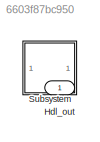
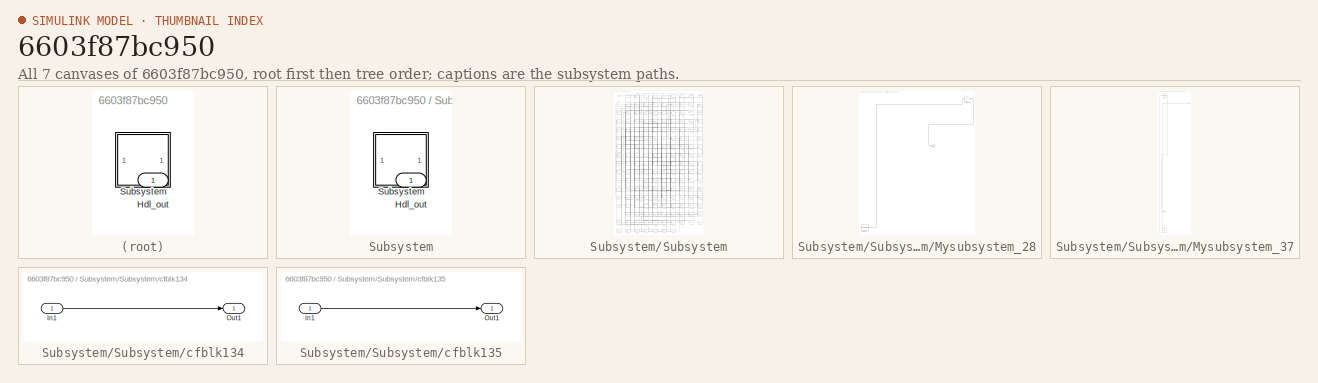
[diagram: thumbnail index - all 7 canvases of the model, root first then tree order]
MODEL slx_6603f87bc950
KIND model
CONFIG AbsTol = auto
CONFIG EnableMultiTasking = off
CONFIG FixedStep = auto
CONFIG MaxStep = auto
CONFIG MinStep = auto
CONFIG RelTol = 1e-3
CONFIG SampleTimeConstraint = Unconstrained
CONFIG SolverName = VariableStepAuto
CONFIG StartTime = 0.0
CONFIG StopTime = 10.0
BLOCK [Outport] Hdl_out
  OutDataTypeStr = uint8
BLOCK [SubSystem] Subsystem
BLOCK [Outport] Subsystem/Hdl_out
  OutDataTypeStr = uint8
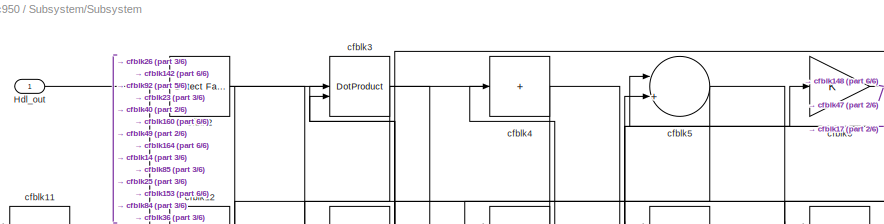
[diagram: Subsystem/Subsystem - part 1/6, top left region]
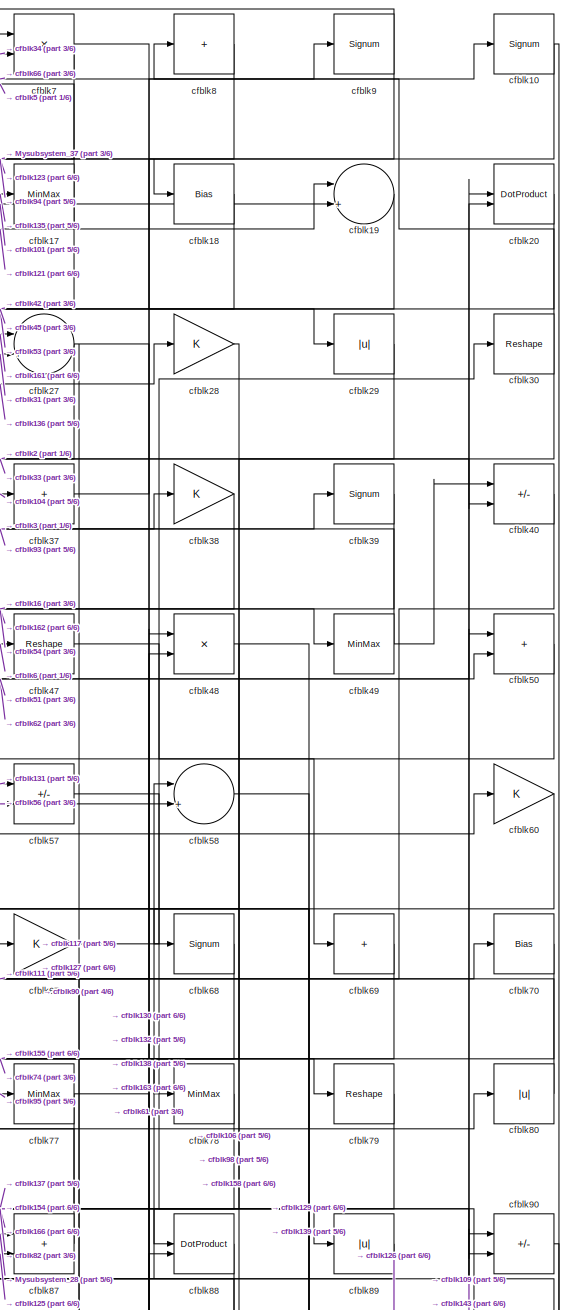
[diagram: Subsystem/Subsystem - part 2/6, top right region]
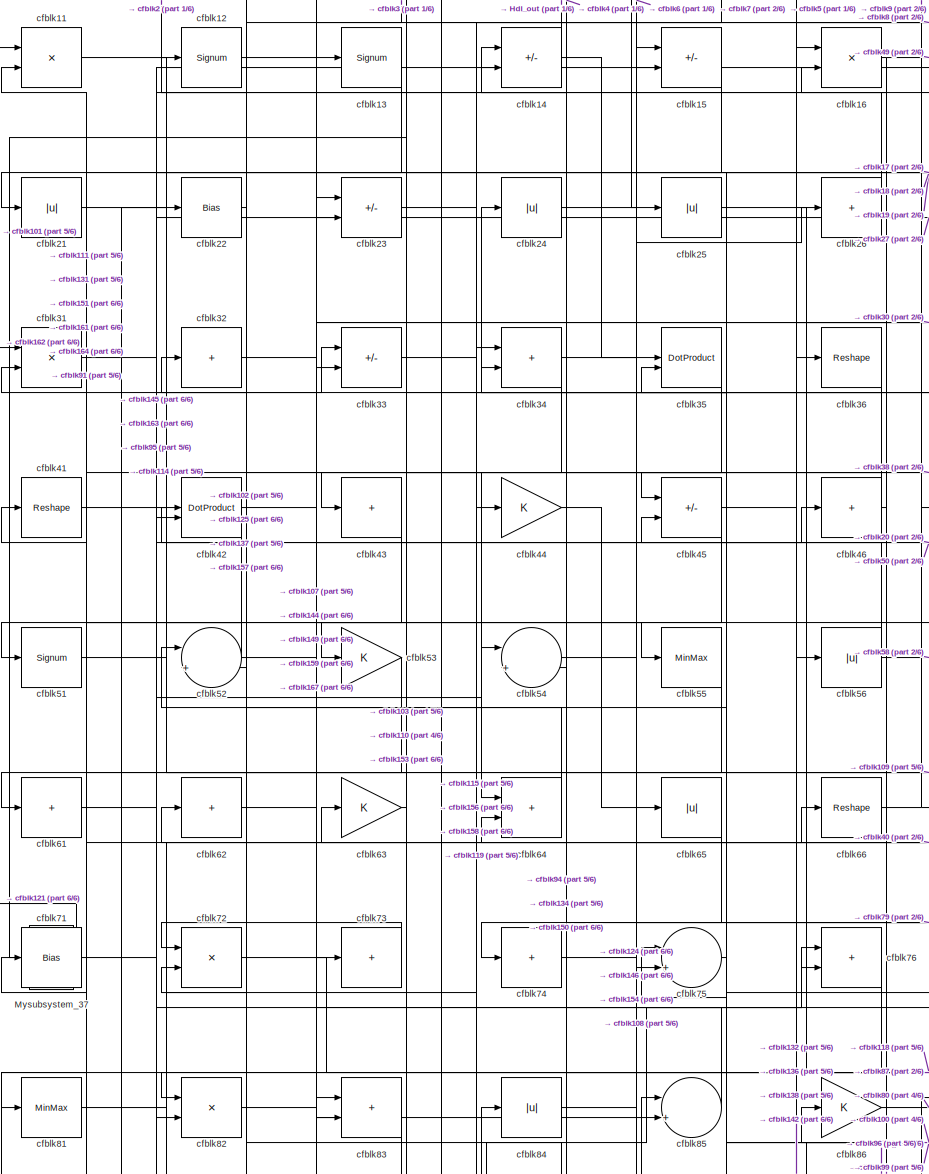
[diagram: Subsystem/Subsystem - part 3/6, top left region]
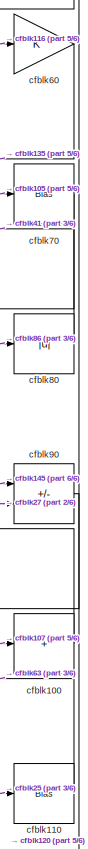
[diagram: Subsystem/Subsystem - part 4/6, middle right region]
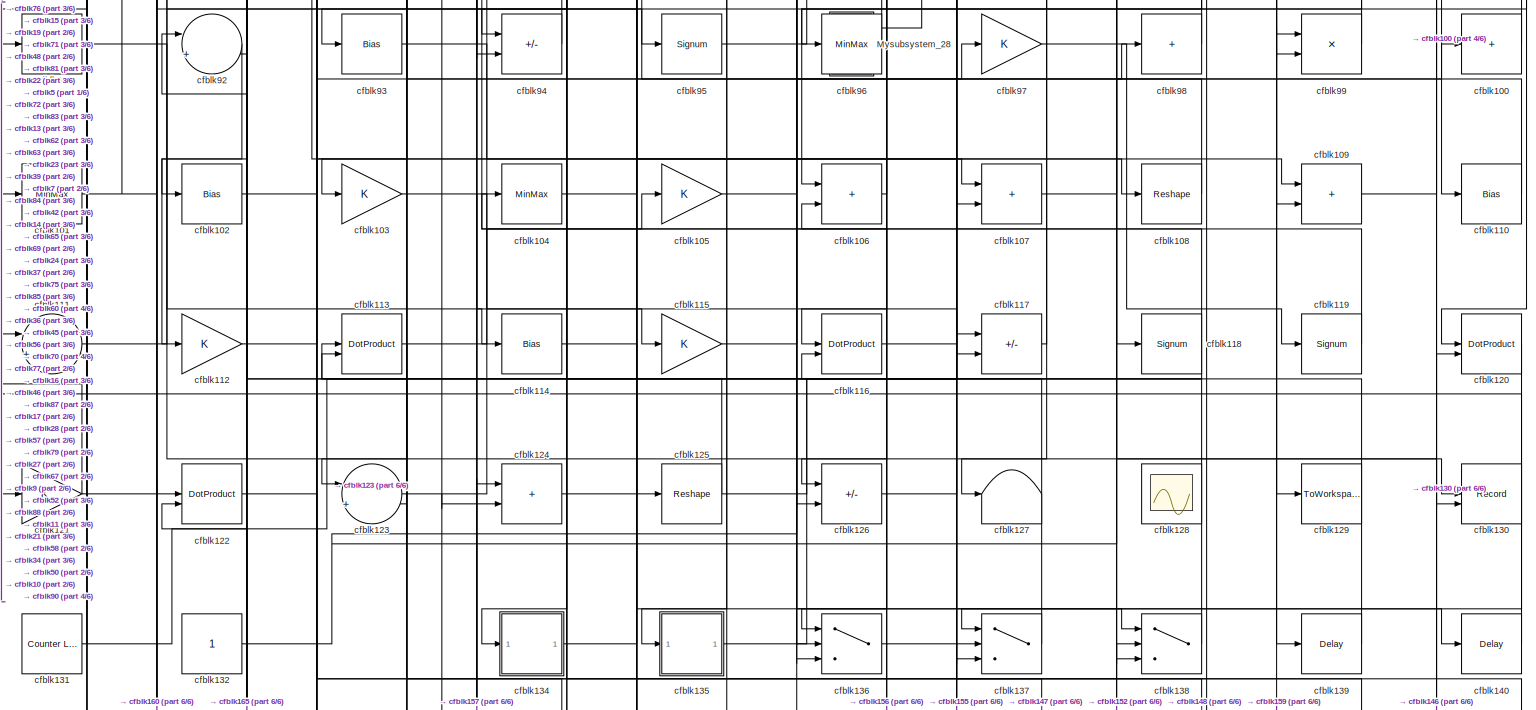
[diagram: Subsystem/Subsystem - part 5/6, full width, bottom band]
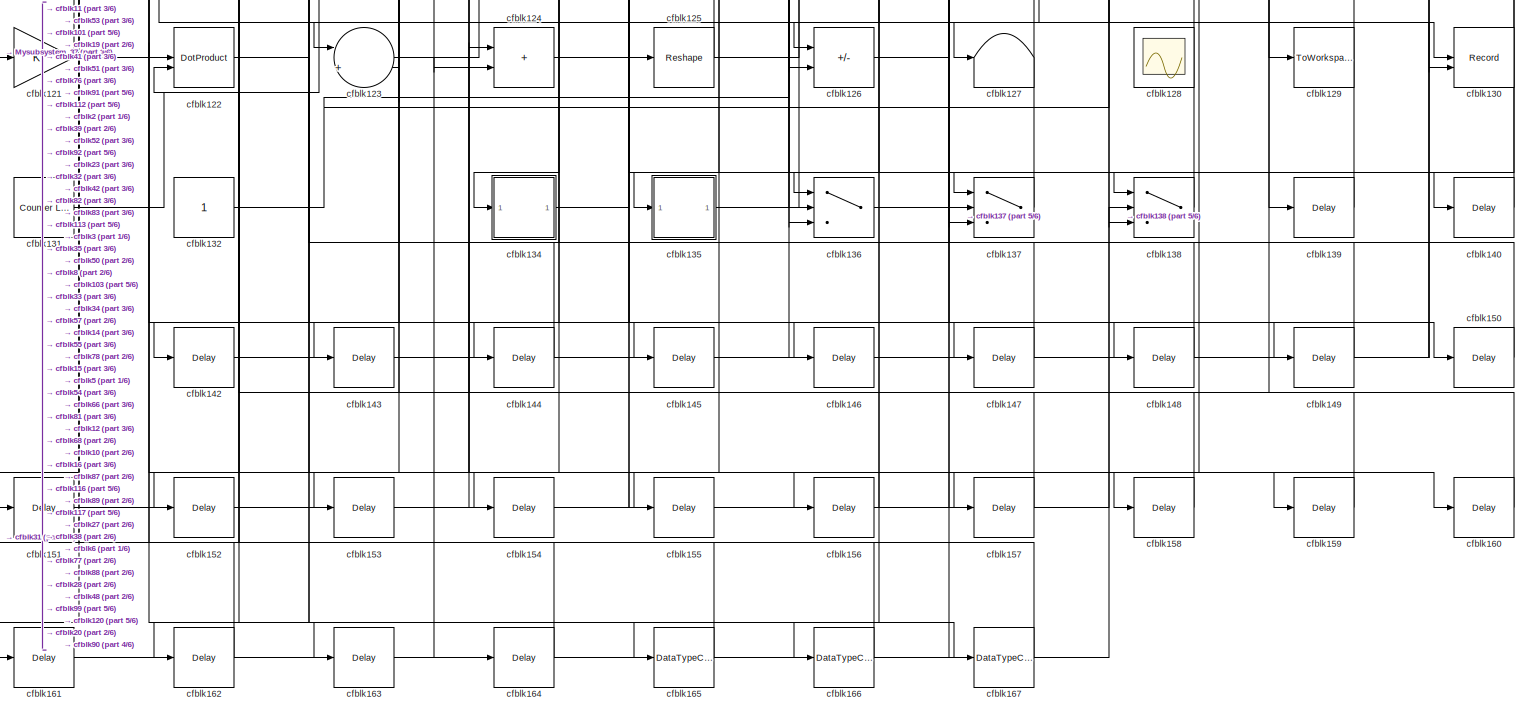
[diagram: Subsystem/Subsystem - part 6/6, full width, bottom band]
BLOCK [SubSystem] Subsystem/Subsystem
BLOCK [Outport] Subsystem/Subsystem/Hdl_out
  OutDataTypeStr = uint8
BLOCK [SubSystem] Subsystem/Subsystem/Mysubsystem_28
  RTWFcnName = Mysubsystem_28
  RTWFcnNameOpts = User specified
  RTWFileNameOpts = Use function name
  RTWSystemCode = Reusable function
  TreatAsAtomicUnit = on
BLOCK [Outport] Subsystem/Subsystem/Mysubsystem_28/Out1
BLOCK [Reference] Subsystem/Subsystem/Mysubsystem_28/cfblk133  REF=hdlsllib/Sources/Counter
Free-Running
  SourceBlock = hdlsllib/Sources/Counter\nFree-Running
  SourceType = Counter Free-Running
BLOCK [Gain] Subsystem/Subsystem/Mysubsystem_28/cfblk59
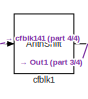
[diagram: Subsystem/Subsystem/Mysubsystem_37 - part 1/4, top left region]
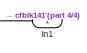
[diagram: Subsystem/Subsystem/Mysubsystem_37 - part 2/4, top right region]
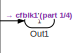
[diagram: Subsystem/Subsystem/Mysubsystem_37 - part 3/4, bottom left region]
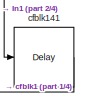
[diagram: Subsystem/Subsystem/Mysubsystem_37 - part 4/4, bottom left region]
BLOCK [SubSystem] Subsystem/Subsystem/Mysubsystem_37
  RTWFcnName = Mysubsystem_37
  RTWFcnNameOpts = User specified
  RTWFileNameOpts = Use function name
  RTWSystemCode = Reusable function
  TreatAsAtomicUnit = on
BLOCK [Inport] Subsystem/Subsystem/Mysubsystem_37/In1
BLOCK [Outport] Subsystem/Subsystem/Mysubsystem_37/Out1
BLOCK [ArithShift] Subsystem/Subsystem/Mysubsystem_37/cfblk1
  BitShiftNumber = 8
  InputPortMap = u0
BLOCK [Delay] Subsystem/Subsystem/Mysubsystem_37/cfblk141
  InputPortMap = u0
  SampleTime = 1
BLOCK [Signum] Subsystem/Subsystem/cfblk10
BLOCK [Sum] Subsystem/Subsystem/cfblk100
  IconShape = rectangular
  Inputs = +
  OutDataTypeStr = uint8
BLOCK [MinMax] Subsystem/Subsystem/cfblk101
  OutDataTypeStr = uint8
BLOCK [Bias] Subsystem/Subsystem/cfblk102
  Bias = 0.0
  SaturateOnIntegerOverflow = off
BLOCK [Gain] Subsystem/Subsystem/cfblk103
  OutDataTypeStr = uint8
BLOCK [MinMax] Subsystem/Subsystem/cfblk104
  OutDataTypeStr = uint8
BLOCK [Gain] Subsystem/Subsystem/cfblk105
  OutDataTypeStr = uint8
BLOCK [Sum] Subsystem/Subsystem/cfblk106
  IconShape = rectangular
  OutDataTypeStr = uint8
BLOCK [Sum] Subsystem/Subsystem/cfblk107
  IconShape = rectangular
  OutDataTypeStr = uint8
BLOCK [Reshape] Subsystem/Subsystem/cfblk108
BLOCK [Sum] Subsystem/Subsystem/cfblk109
  IconShape = rectangular
  OutDataTypeStr = uint8
BLOCK [Product] Subsystem/Subsystem/cfblk11
  Inputs = */
  OutDataTypeStr = uint8
  RndMeth = Zero
  SaturateOnIntegerOverflow = on
BLOCK [Bias] Subsystem/Subsystem/cfblk110
  Bias = 0.0
  SaturateOnIntegerOverflow = off
BLOCK [Sum] Subsystem/Subsystem/cfblk111
  Inputs = |++
  OutDataTypeStr = uint8
BLOCK [Gain] Subsystem/Subsystem/cfblk112
  OutDataTypeStr = uint8
BLOCK [DotProduct] Subsystem/Subsystem/cfblk113
  OutDataTypeStr = uint8
BLOCK [Bias] Subsystem/Subsystem/cfblk114
  Bias = 0.0
  SaturateOnIntegerOverflow = off
BLOCK [Gain] Subsystem/Subsystem/cfblk115
  OutDataTypeStr = uint8
BLOCK [DotProduct] Subsystem/Subsystem/cfblk116
  OutDataTypeStr = uint8
BLOCK [Sum] Subsystem/Subsystem/cfblk117
  IconShape = rectangular
  Inputs = +-
  OutDataTypeStr = uint8
BLOCK [Signum] Subsystem/Subsystem/cfblk118
BLOCK [Signum] Subsystem/Subsystem/cfblk119
BLOCK [Signum] Subsystem/Subsystem/cfblk12
BLOCK [DotProduct] Subsystem/Subsystem/cfblk120
  OutDataTypeStr = uint8
BLOCK [Gain] Subsystem/Subsystem/cfblk121
  OutDataTypeStr = uint8
BLOCK [DotProduct] Subsystem/Subsystem/cfblk122
  OutDataTypeStr = uint8
BLOCK [Sum] Subsystem/Subsystem/cfblk123
  Inputs = |++
  OutDataTypeStr = uint8
BLOCK [Sum] Subsystem/Subsystem/cfblk124
  IconShape = rectangular
  OutDataTypeStr = uint8
BLOCK [Reshape] Subsystem/Subsystem/cfblk125
BLOCK [Sum] Subsystem/Subsystem/cfblk126
  IconShape = rectangular
  Inputs = +-
  OutDataTypeStr = uint8
BLOCK [Terminator] Subsystem/Subsystem/cfblk127
BLOCK [Scope] Subsystem/Subsystem/cfblk128
  Floating = on
  NumInputPorts = 1
  ScopeSpecificationString = Simulink.scopes.TimeScopeBlockCfg('CurrentConfiguration', extmgr.ConfigurationSet(extmgr.Configuration('Core','General UI',true,'FigureColor',[0.156862745098039 0.156862745098039 0.156862745098039]),extmgr.Configuration('Core','Source UI',true),extmgr.Configuration('Sources','WiredSimulink',true,'DataLoggingSaveFormat','StructureWithTime','DataLoggingLimitDataPoints',true,'DataLoggingDecimation','...<+2674ch>
BLOCK [ToWorkspace] Subsystem/Subsystem/cfblk129
  MaxDataPoints = inf
  SampleTime = -1
  SaveFormat = Timeseries
  VariableName = simout
BLOCK [Signum] Subsystem/Subsystem/cfblk13
BLOCK [Record] Subsystem/Subsystem/cfblk130
  CompatibilityTag = XY
  FileSettingsInternal = {"entries":[{"content":{"excelSettings":{"content":{},"type":"Streamout.ExcelSettings"}},"type":"Streamout.FileSettingStorage","uuid":""}],"packageUris":["http:\/\/schema.mathworks.com\/mf0\/streamout_blocks\/R2020a"],"version":"1.0"}
  Layout = [1 1]
  SignalsInternal = {"entries":[{"content":{"signals":[{"content":{"blockPath":[],"dimensions":[1],"domain":"","lineColor":"#a2142f","plots":[1],"port":1,"signalID":55734,"signalName":"cfblk91"},"type":"RecordBlkView.Signal","uuid":""},{"content":{"blockPath":[],"dimensions":[1],"domain":"","lineColor":"#139fff","plots":[1],"port":2,"signalID":55737,"signalName":"cfblk77"},"type":"RecordBlkView.Signal","uuid":""}]},"...<+142ch>
  VisualizationBindings = {"xyplotplugin":{"info":[{"series":[{"bindingParametersList":[{"parameter":"X-Axis","signalID":55734,"signalName":"cfblk91"},{"parameter":"Y-Axis","signalID":55737,"signalName":"cfblk77"}],"seriesID":52220}],"subplotID":1}]}}
  st = -1
BLOCK [Reference] Subsystem/Subsystem/cfblk131  REF=hdlsllib/Sources/Counter
Limited
  SourceBlock = hdlsllib/Sources/Counter\nLimited
  SourceType = Counter Limited
BLOCK [Constant] Subsystem/Subsystem/cfblk132
  OutDataTypeStr = uint8
  SampleTime = -1
BLOCK [SubSystem] Subsystem/Subsystem/cfblk134
  LibrarySourceBlock = hdlsllib/Ports &\nSubsystems/Subsystem
BLOCK [Inport] Subsystem/Subsystem/cfblk134/In1
BLOCK [Outport] Subsystem/Subsystem/cfblk134/Out1
BLOCK [SubSystem] Subsystem/Subsystem/cfblk135
  LibrarySourceBlock = hdlsllib/Ports &\nSubsystems/Subsystem
BLOCK [Inport] Subsystem/Subsystem/cfblk135/In1
BLOCK [Outport] Subsystem/Subsystem/cfblk135/Out1
BLOCK [Switch] Subsystem/Subsystem/cfblk136
  InputSameDT = off
  OutDataTypeStr = uint8
  SaturateOnIntegerOverflow = off
BLOCK [Switch] Subsystem/Subsystem/cfblk137
  InputSameDT = off
  OutDataTypeStr = uint8
  SaturateOnIntegerOverflow = off
BLOCK [Switch] Subsystem/Subsystem/cfblk138
  InputSameDT = off
  OutDataTypeStr = uint8
  SaturateOnIntegerOverflow = off
BLOCK [Delay] Subsystem/Subsystem/cfblk139
  InputPortMap = u0
  SampleTime = 1
BLOCK [Sum] Subsystem/Subsystem/cfblk14
  IconShape = rectangular
  Inputs = +-
  OutDataTypeStr = uint8
BLOCK [Delay] Subsystem/Subsystem/cfblk140
  InputPortMap = u0
  SampleTime = 1
BLOCK [Delay] Subsystem/Subsystem/cfblk142
  InputPortMap = u0
  SampleTime = 1
BLOCK [Delay] Subsystem/Subsystem/cfblk143
  InputPortMap = u0
  SampleTime = 1
BLOCK [Delay] Subsystem/Subsystem/cfblk144
  InputPortMap = u0
  SampleTime = 1
BLOCK [Delay] Subsystem/Subsystem/cfblk145
  InputPortMap = u0
  SampleTime = 1
BLOCK [Delay] Subsystem/Subsystem/cfblk146
  InputPortMap = u0
  SampleTime = 1
BLOCK [Delay] Subsystem/Subsystem/cfblk147
  InputPortMap = u0
  SampleTime = 1
BLOCK [Delay] Subsystem/Subsystem/cfblk148
  InputPortMap = u0
  SampleTime = 1
BLOCK [Delay] Subsystem/Subsystem/cfblk149
  InputPortMap = u0
  SampleTime = 1
BLOCK [Sum] Subsystem/Subsystem/cfblk15
  IconShape = rectangular
  Inputs = +-
  OutDataTypeStr = uint8
BLOCK [Delay] Subsystem/Subsystem/cfblk150
  InputPortMap = u0
  SampleTime = 1
BLOCK [Delay] Subsystem/Subsystem/cfblk151
  InputPortMap = u0
  SampleTime = 1
BLOCK [Delay] Subsystem/Subsystem/cfblk152
  InputPortMap = u0
  SampleTime = 1
BLOCK [Delay] Subsystem/Subsystem/cfblk153
  InputPortMap = u0
  SampleTime = 1
BLOCK [Delay] Subsystem/Subsystem/cfblk154
  InputPortMap = u0
  SampleTime = 1
BLOCK [Delay] Subsystem/Subsystem/cfblk155
  InputPortMap = u0
  SampleTime = 1
BLOCK [Delay] Subsystem/Subsystem/cfblk156
  InputPortMap = u0
  SampleTime = 1
BLOCK [Delay] Subsystem/Subsystem/cfblk157
  InputPortMap = u0
  SampleTime = 1
BLOCK [Delay] Subsystem/Subsystem/cfblk158
  InputPortMap = u0
  SampleTime = 1
BLOCK [Delay] Subsystem/Subsystem/cfblk159
  InputPortMap = u0
  SampleTime = 1
BLOCK [Product] Subsystem/Subsystem/cfblk16
  Inputs = */
  OutDataTypeStr = uint8
  RndMeth = Zero
  SaturateOnIntegerOverflow = on
BLOCK [Delay] Subsystem/Subsystem/cfblk160
  InputPortMap = u0
  SampleTime = 1
BLOCK [Delay] Subsystem/Subsystem/cfblk161
  InputPortMap = u0
  SampleTime = 1
BLOCK [Delay] Subsystem/Subsystem/cfblk162
  InputPortMap = u0
  SampleTime = 1
BLOCK [Delay] Subsystem/Subsystem/cfblk163
  InputPortMap = u0
  SampleTime = 1
BLOCK [Delay] Subsystem/Subsystem/cfblk164
  InputPortMap = u0
  SampleTime = 1
BLOCK [DataTypeConversion] Subsystem/Subsystem/cfblk165
  OutDataTypeStr = uint8
  RndMeth = Floor
  SaturateOnIntegerOverflow = off
BLOCK [DataTypeConversion] Subsystem/Subsystem/cfblk166
  OutDataTypeStr = uint8
  RndMeth = Floor
  SaturateOnIntegerOverflow = off
BLOCK [DataTypeConversion] Subsystem/Subsystem/cfblk167
  OutDataTypeStr = uint8
  RndMeth = Floor
  SaturateOnIntegerOverflow = off
BLOCK [MinMax] Subsystem/Subsystem/cfblk17
  OutDataTypeStr = uint8
BLOCK [Bias] Subsystem/Subsystem/cfblk18
  Bias = 0.0
  SaturateOnIntegerOverflow = off
BLOCK [Sum] Subsystem/Subsystem/cfblk19
  Inputs = |++
  OutDataTypeStr = uint8
BLOCK [Reference] Subsystem/Subsystem/cfblk2  REF=hdlsllib/Logic and Bit
Operations/Detect Fall
Negative
  SourceBlock = hdlsllib/Logic and Bit\nOperations/Detect Fall\nNegative
  SourceType = Detect Fall Negative
BLOCK [DotProduct] Subsystem/Subsystem/cfblk20
  OutDataTypeStr = uint8
BLOCK [Abs] Subsystem/Subsystem/cfblk21
  OutDataTypeStr = uint8
  SaturateOnIntegerOverflow = off
BLOCK [Bias] Subsystem/Subsystem/cfblk22
  Bias = 0.0
  SaturateOnIntegerOverflow = off
BLOCK [Sum] Subsystem/Subsystem/cfblk23
  IconShape = rectangular
  Inputs = +-
  OutDataTypeStr = uint8
BLOCK [Abs] Subsystem/Subsystem/cfblk24
  OutDataTypeStr = uint8
  SaturateOnIntegerOverflow = off
BLOCK [Abs] Subsystem/Subsystem/cfblk25
  OutDataTypeStr = uint8
  SaturateOnIntegerOverflow = off
BLOCK [Sum] Subsystem/Subsystem/cfblk26
  IconShape = rectangular
  Inputs = +
  OutDataTypeStr = uint8
BLOCK [Sum] Subsystem/Subsystem/cfblk27
  Inputs = |++
  OutDataTypeStr = uint8
BLOCK [Gain] Subsystem/Subsystem/cfblk28
  OutDataTypeStr = uint8
BLOCK [Abs] Subsystem/Subsystem/cfblk29
  OutDataTypeStr = uint8
  SaturateOnIntegerOverflow = off
BLOCK [DotProduct] Subsystem/Subsystem/cfblk3
  OutDataTypeStr = uint8
BLOCK [Reshape] Subsystem/Subsystem/cfblk30
BLOCK [Product] Subsystem/Subsystem/cfblk31
  Inputs = */
  OutDataTypeStr = uint8
  RndMeth = Zero
  SaturateOnIntegerOverflow = on
BLOCK [Sum] Subsystem/Subsystem/cfblk32
  IconShape = rectangular
  Inputs = +
  OutDataTypeStr = uint8
BLOCK [Sum] Subsystem/Subsystem/cfblk33
  IconShape = rectangular
  Inputs = +-
  OutDataTypeStr = uint8
BLOCK [Sum] Subsystem/Subsystem/cfblk34
  IconShape = rectangular
  OutDataTypeStr = uint8
BLOCK [DotProduct] Subsystem/Subsystem/cfblk35
  OutDataTypeStr = uint8
BLOCK [Reshape] Subsystem/Subsystem/cfblk36
BLOCK [Sum] Subsystem/Subsystem/cfblk37
  IconShape = rectangular
  Inputs = +
  OutDataTypeStr = uint8
BLOCK [Gain] Subsystem/Subsystem/cfblk38
  OutDataTypeStr = uint8
BLOCK [Signum] Subsystem/Subsystem/cfblk39
BLOCK [Sum] Subsystem/Subsystem/cfblk4
  IconShape = rectangular
  Inputs = +
  OutDataTypeStr = uint8
BLOCK [Sum] Subsystem/Subsystem/cfblk40
  IconShape = rectangular
  Inputs = +-
  OutDataTypeStr = uint8
BLOCK [Reshape] Subsystem/Subsystem/cfblk41
BLOCK [DotProduct] Subsystem/Subsystem/cfblk42
  OutDataTypeStr = uint8
BLOCK [Sum] Subsystem/Subsystem/cfblk43
  IconShape = rectangular
  Inputs = +
  OutDataTypeStr = uint8
BLOCK [Gain] Subsystem/Subsystem/cfblk44
  OutDataTypeStr = uint8
BLOCK [Sum] Subsystem/Subsystem/cfblk45
  IconShape = rectangular
  Inputs = +-
  OutDataTypeStr = uint8
BLOCK [Sum] Subsystem/Subsystem/cfblk46
  IconShape = rectangular
  Inputs = +
  OutDataTypeStr = uint8
BLOCK [Reshape] Subsystem/Subsystem/cfblk47
BLOCK [Product] Subsystem/Subsystem/cfblk48
  Inputs = */
  OutDataTypeStr = uint8
  RndMeth = Zero
  SaturateOnIntegerOverflow = on
BLOCK [MinMax] Subsystem/Subsystem/cfblk49
  OutDataTypeStr = uint8
BLOCK [Sum] Subsystem/Subsystem/cfblk5
  Inputs = |++
  OutDataTypeStr = uint8
BLOCK [Sum] Subsystem/Subsystem/cfblk50
  IconShape = rectangular
  OutDataTypeStr = uint8
BLOCK [Signum] Subsystem/Subsystem/cfblk51
BLOCK [Sum] Subsystem/Subsystem/cfblk52
  Inputs = |++
  OutDataTypeStr = uint8
BLOCK [Gain] Subsystem/Subsystem/cfblk53
  OutDataTypeStr = uint8
BLOCK [Sum] Subsystem/Subsystem/cfblk54
  Inputs = |++
  OutDataTypeStr = uint8
BLOCK [MinMax] Subsystem/Subsystem/cfblk55
  OutDataTypeStr = uint8
BLOCK [Abs] Subsystem/Subsystem/cfblk56
  OutDataTypeStr = uint8
  SaturateOnIntegerOverflow = off
BLOCK [Sum] Subsystem/Subsystem/cfblk57
  IconShape = rectangular
  Inputs = +-
  OutDataTypeStr = uint8
BLOCK [Sum] Subsystem/Subsystem/cfblk58
  Inputs = |++
  OutDataTypeStr = uint8
BLOCK [Gain] Subsystem/Subsystem/cfblk6
  OutDataTypeStr = uint8
BLOCK [Gain] Subsystem/Subsystem/cfblk60
  OutDataTypeStr = uint8
BLOCK [Sum] Subsystem/Subsystem/cfblk61
  IconShape = rectangular
  Inputs = +
  OutDataTypeStr = uint8
BLOCK [Sum] Subsystem/Subsystem/cfblk62
  IconShape = rectangular
  Inputs = +
  OutDataTypeStr = uint8
BLOCK [Gain] Subsystem/Subsystem/cfblk63
  OutDataTypeStr = uint8
BLOCK [Sum] Subsystem/Subsystem/cfblk64
  IconShape = rectangular
  OutDataTypeStr = uint8
BLOCK [Abs] Subsystem/Subsystem/cfblk65
  OutDataTypeStr = uint8
  SaturateOnIntegerOverflow = off
BLOCK [Reshape] Subsystem/Subsystem/cfblk66
BLOCK [Gain] Subsystem/Subsystem/cfblk67
  OutDataTypeStr = uint8
BLOCK [Signum] Subsystem/Subsystem/cfblk68
BLOCK [Sum] Subsystem/Subsystem/cfblk69
  IconShape = rectangular
  Inputs = +
  OutDataTypeStr = uint8
BLOCK [Product] Subsystem/Subsystem/cfblk7
  Inputs = */
  OutDataTypeStr = uint8
  RndMeth = Zero
  SaturateOnIntegerOverflow = on
BLOCK [Bias] Subsystem/Subsystem/cfblk70
  Bias = 0.0
  SaturateOnIntegerOverflow = off
BLOCK [Bias] Subsystem/Subsystem/cfblk71
  Bias = 0.0
  SaturateOnIntegerOverflow = off
BLOCK [Product] Subsystem/Subsystem/cfblk72
  Inputs = */
  OutDataTypeStr = uint8
  RndMeth = Zero
  SaturateOnIntegerOverflow = on
BLOCK [Sum] Subsystem/Subsystem/cfblk73
  IconShape = rectangular
  Inputs = +
  OutDataTypeStr = uint8
BLOCK [Sum] Subsystem/Subsystem/cfblk74
  IconShape = rectangular
  Inputs = +
  OutDataTypeStr = uint8
BLOCK [Sum] Subsystem/Subsystem/cfblk75
  Inputs = |++
  OutDataTypeStr = uint8
BLOCK [Sum] Subsystem/Subsystem/cfblk76
  IconShape = rectangular
  OutDataTypeStr = uint8
BLOCK [MinMax] Subsystem/Subsystem/cfblk77
  OutDataTypeStr = uint8
BLOCK [MinMax] Subsystem/Subsystem/cfblk78
  OutDataTypeStr = uint8
BLOCK [Reshape] Subsystem/Subsystem/cfblk79
BLOCK [Sum] Subsystem/Subsystem/cfblk8
  IconShape = rectangular
  Inputs = +
  OutDataTypeStr = uint8
BLOCK [Abs] Subsystem/Subsystem/cfblk80
  OutDataTypeStr = uint8
  SaturateOnIntegerOverflow = off
BLOCK [MinMax] Subsystem/Subsystem/cfblk81
  OutDataTypeStr = uint8
BLOCK [Product] Subsystem/Subsystem/cfblk82
  Inputs = */
  OutDataTypeStr = uint8
  RndMeth = Zero
  SaturateOnIntegerOverflow = on
BLOCK [Sum] Subsystem/Subsystem/cfblk83
  IconShape = rectangular
  OutDataTypeStr = uint8
BLOCK [Abs] Subsystem/Subsystem/cfblk84
  OutDataTypeStr = uint8
  SaturateOnIntegerOverflow = off
BLOCK [Sum] Subsystem/Subsystem/cfblk85
  Inputs = |++
  OutDataTypeStr = uint8
BLOCK [Gain] Subsystem/Subsystem/cfblk86
  OutDataTypeStr = uint8
BLOCK [Sum] Subsystem/Subsystem/cfblk87
  IconShape = rectangular
  OutDataTypeStr = uint8
BLOCK [DotProduct] Subsystem/Subsystem/cfblk88
  OutDataTypeStr = uint8
BLOCK [Abs] Subsystem/Subsystem/cfblk89
  OutDataTypeStr = uint8
  SaturateOnIntegerOverflow = off
BLOCK [Signum] Subsystem/Subsystem/cfblk9
BLOCK [Sum] Subsystem/Subsystem/cfblk90
  IconShape = rectangular
  Inputs = +-
  OutDataTypeStr = uint8
BLOCK [Sum] Subsystem/Subsystem/cfblk91
  IconShape = rectangular
  Inputs = +
  OutDataTypeStr = uint8
BLOCK [Sum] Subsystem/Subsystem/cfblk92
  Inputs = |++
  OutDataTypeStr = uint8
BLOCK [Bias] Subsystem/Subsystem/cfblk93
  Bias = 0.0
  SaturateOnIntegerOverflow = off
BLOCK [Sum] Subsystem/Subsystem/cfblk94
  IconShape = rectangular
  Inputs = +-
  OutDataTypeStr = uint8
BLOCK [Signum] Subsystem/Subsystem/cfblk95
BLOCK [MinMax] Subsystem/Subsystem/cfblk96
  OutDataTypeStr = uint8
BLOCK [Gain] Subsystem/Subsystem/cfblk97
  OutDataTypeStr = uint8
BLOCK [Sum] Subsystem/Subsystem/cfblk98
  IconShape = rectangular
  Inputs = +
  OutDataTypeStr = uint8
BLOCK [Product] Subsystem/Subsystem/cfblk99
  Inputs = */
  OutDataTypeStr = uint8
  RndMeth = Zero
  SaturateOnIntegerOverflow = on
LINE Subsystem/Subsystem/Mysubsystem_28/cfblk133:1 -> Subsystem/Subsystem/Mysubsystem_28/cfblk59:1
LINE Subsystem/Subsystem/Mysubsystem_28/cfblk59:1 -> Subsystem/Subsystem/Mysubsystem_28/Out1:1
LINE Subsystem/Subsystem/Mysubsystem_28:1 -> Subsystem/Subsystem/cfblk87:1
LINE Subsystem/Subsystem/Mysubsystem_37/In1:1 -> Subsystem/Subsystem/Mysubsystem_37/cfblk141:1
LINE Subsystem/Subsystem/Mysubsystem_37/cfblk141:1 -> Subsystem/Subsystem/Mysubsystem_37/cfblk1:1
LINE Subsystem/Subsystem/Mysubsystem_37/cfblk1:1 -> Subsystem/Subsystem/Mysubsystem_37/Out1:1
LINE Subsystem/Subsystem/Mysubsystem_37:1 -> Subsystem/Subsystem/cfblk121:1
LINE Subsystem/Subsystem/cfblk100:1 -> Subsystem/Subsystem/cfblk86:1
NET Subsystem/Subsystem/cfblk101:1 -> Subsystem/Subsystem/cfblk160:1, Subsystem/Subsystem/cfblk19:2, Subsystem/Subsystem/cfblk22:1
LINE Subsystem/Subsystem/cfblk102:1 -> Subsystem/Subsystem/cfblk13:1
NET Subsystem/Subsystem/cfblk103:1 -> Subsystem/Subsystem/cfblk117:2, Subsystem/Subsystem/cfblk157:1
LINE Subsystem/Subsystem/cfblk104:1 -> Subsystem/Subsystem/cfblk37:1
LINE Subsystem/Subsystem/cfblk105:1 -> Subsystem/Subsystem/cfblk70:1
LINE Subsystem/Subsystem/cfblk106:1 -> Subsystem/Subsystem/cfblk16:2
LINE Subsystem/Subsystem/cfblk107:1 -> Subsystem/Subsystem/cfblk100:1
LINE Subsystem/Subsystem/cfblk108:1 -> Subsystem/Subsystem/cfblk85:1
LINE Subsystem/Subsystem/cfblk109:1 -> Subsystem/Subsystem/cfblk50:1
NET Subsystem/Subsystem/cfblk10:1 -> Subsystem/Subsystem/cfblk126:2, Subsystem/Subsystem/cfblk93:1
LINE Subsystem/Subsystem/cfblk110:1 -> Subsystem/Subsystem/cfblk63:1
LINE Subsystem/Subsystem/cfblk111:1 -> Subsystem/Subsystem/cfblk48:1
NET Subsystem/Subsystem/cfblk112:1 -> Subsystem/Subsystem/cfblk152:1, Subsystem/Subsystem/cfblk97:1
NET Subsystem/Subsystem/cfblk113:1 -> Subsystem/Subsystem/cfblk105:1, Subsystem/Subsystem/cfblk123:2
LINE Subsystem/Subsystem/cfblk114:1 -> Subsystem/Subsystem/cfblk140:1
LINE Subsystem/Subsystem/cfblk115:1 -> Subsystem/Subsystem/cfblk98:1
LINE Subsystem/Subsystem/cfblk116:1 -> Subsystem/Subsystem/cfblk60:1
LINE Subsystem/Subsystem/cfblk117:1 -> Subsystem/Subsystem/cfblk67:1
NET Subsystem/Subsystem/cfblk118:1 -> Subsystem/Subsystem/cfblk104:1, Subsystem/Subsystem/cfblk113:1
LINE Subsystem/Subsystem/cfblk119:1 -> Subsystem/Subsystem/cfblk84:1
LINE Subsystem/Subsystem/cfblk11:1 -> Subsystem/Subsystem/cfblk99:2
LINE Subsystem/Subsystem/cfblk120:1 -> Subsystem/Subsystem/cfblk137:1
NET Subsystem/Subsystem/cfblk121:1 -> Subsystem/Subsystem/cfblk11:1, Subsystem/Subsystem/cfblk19:1, Subsystem/Subsystem/cfblk76:2
LINE Subsystem/Subsystem/cfblk122:1 -> Subsystem/Subsystem/cfblk165:1
NET Subsystem/Subsystem/cfblk123:1 -> Subsystem/Subsystem/cfblk124:2, Subsystem/Subsystem/cfblk57:2
NET Subsystem/Subsystem/cfblk124:1 -> Subsystem/Subsystem/cfblk147:1, Subsystem/Subsystem/cfblk66:1
NET Subsystem/Subsystem/cfblk125:1 -> Subsystem/Subsystem/cfblk12:1, Subsystem/Subsystem/cfblk87:2
LINE Subsystem/Subsystem/cfblk126:1 -> Subsystem/Subsystem/cfblk38:1
LINE Subsystem/Subsystem/cfblk12:1 -> Subsystem/Subsystem/cfblk73:1
NET Subsystem/Subsystem/cfblk131:1 -> Subsystem/Subsystem/cfblk57:1, Subsystem/Subsystem/cfblk71:1
NET Subsystem/Subsystem/cfblk132:1 -> Subsystem/Subsystem/cfblk48:2, Subsystem/Subsystem/cfblk56:1
LINE Subsystem/Subsystem/cfblk134/In1:1 -> Subsystem/Subsystem/cfblk134/Out1:1
LINE Subsystem/Subsystem/cfblk134:1 -> Subsystem/Subsystem/cfblk75:2
LINE Subsystem/Subsystem/cfblk135/In1:1 -> Subsystem/Subsystem/cfblk135/Out1:1
LINE Subsystem/Subsystem/cfblk135:1 -> Subsystem/Subsystem/cfblk17:1
LINE Subsystem/Subsystem/cfblk136:1 -> Subsystem/Subsystem/cfblk28:1
LINE Subsystem/Subsystem/cfblk137:1 -> Subsystem/Subsystem/cfblk72:2
LINE Subsystem/Subsystem/cfblk138:1 -> Subsystem/Subsystem/cfblk14:1
LINE Subsystem/Subsystem/cfblk139:1 -> Subsystem/Subsystem/cfblk106:2
LINE Subsystem/Subsystem/cfblk13:1 -> Subsystem/Subsystem/cfblk21:1
LINE Subsystem/Subsystem/cfblk140:1 -> Subsystem/Subsystem/cfblk111:1
LINE Subsystem/Subsystem/cfblk142:1 -> Subsystem/Subsystem/cfblk16:1
LINE Subsystem/Subsystem/cfblk143:1 -> Subsystem/Subsystem/cfblk20:1
LINE Subsystem/Subsystem/cfblk144:1 -> Subsystem/Subsystem/cfblk83:1
LINE Subsystem/Subsystem/cfblk145:1 -> Subsystem/Subsystem/cfblk90:1
LINE Subsystem/Subsystem/cfblk146:1 -> Subsystem/Subsystem/cfblk120:2
LINE Subsystem/Subsystem/cfblk147:1 -> Subsystem/Subsystem/cfblk117:1
LINE Subsystem/Subsystem/cfblk148:1 -> Subsystem/Subsystem/cfblk113:2
LINE Subsystem/Subsystem/cfblk149:1 -> Subsystem/Subsystem/cfblk23:1
NET Subsystem/Subsystem/cfblk14:1 -> Subsystem/Subsystem/Hdl_out:1, Subsystem/Subsystem/cfblk35:1
LINE Subsystem/Subsystem/cfblk150:1 -> Subsystem/Subsystem/cfblk14:2
LINE Subsystem/Subsystem/cfblk151:1 -> Subsystem/Subsystem/cfblk124:1
LINE Subsystem/Subsystem/cfblk152:1 -> Subsystem/Subsystem/cfblk138:2
LINE Subsystem/Subsystem/cfblk153:1 -> Subsystem/Subsystem/cfblk5:2
LINE Subsystem/Subsystem/cfblk154:1 -> Subsystem/Subsystem/cfblk15:1
LINE Subsystem/Subsystem/cfblk155:1 -> Subsystem/Subsystem/cfblk137:2
LINE Subsystem/Subsystem/cfblk156:1 -> Subsystem/Subsystem/cfblk116:2
LINE Subsystem/Subsystem/cfblk157:1 -> Subsystem/Subsystem/cfblk52:2
LINE Subsystem/Subsystem/cfblk158:1 -> Subsystem/Subsystem/cfblk34:1
LINE Subsystem/Subsystem/cfblk159:1 -> Subsystem/Subsystem/cfblk99:1
LINE Subsystem/Subsystem/cfblk15:1 -> Subsystem/Subsystem/cfblk111:2
LINE Subsystem/Subsystem/cfblk160:1 -> Subsystem/Subsystem/cfblk3:2
LINE Subsystem/Subsystem/cfblk161:1 -> Subsystem/Subsystem/cfblk27:1
LINE Subsystem/Subsystem/cfblk162:1 -> Subsystem/Subsystem/cfblk31:1
LINE Subsystem/Subsystem/cfblk163:1 -> Subsystem/Subsystem/cfblk88:2
LINE Subsystem/Subsystem/cfblk164:1 -> Subsystem/Subsystem/cfblk11:2
LINE Subsystem/Subsystem/cfblk165:1 -> Subsystem/Subsystem/cfblk92:1
LINE Subsystem/Subsystem/cfblk166:1 -> Subsystem/Subsystem/cfblk122:1
LINE Subsystem/Subsystem/cfblk167:1 -> Subsystem/Subsystem/cfblk122:2
NET Subsystem/Subsystem/cfblk16:1 -> Subsystem/Subsystem/cfblk136:1, Subsystem/Subsystem/cfblk49:1
NET Subsystem/Subsystem/cfblk17:1 -> Subsystem/Subsystem/cfblk5:1, Subsystem/Subsystem/cfblk82:2
LINE Subsystem/Subsystem/cfblk18:1 -> Subsystem/Subsystem/cfblk42:2
LINE Subsystem/Subsystem/cfblk19:1 -> Subsystem/Subsystem/cfblk53:1
LINE Subsystem/Subsystem/cfblk20:1 -> Subsystem/Subsystem/cfblk45:1
LINE Subsystem/Subsystem/cfblk21:1 -> Subsystem/Subsystem/cfblk109:2
LINE Subsystem/Subsystem/cfblk22:1 -> Subsystem/Subsystem/cfblk102:1
LINE Subsystem/Subsystem/cfblk23:1 -> Subsystem/Subsystem/cfblk115:1
LINE Subsystem/Subsystem/cfblk24:1 -> Subsystem/Subsystem/cfblk107:1
LINE Subsystem/Subsystem/cfblk25:1 -> Subsystem/Subsystem/cfblk110:1
LINE Subsystem/Subsystem/cfblk26:1 -> Subsystem/Subsystem/cfblk2:1
NET Subsystem/Subsystem/cfblk27:1 -> Subsystem/Subsystem/cfblk127:1, Subsystem/Subsystem/cfblk136:3, Subsystem/Subsystem/cfblk90:2
LINE Subsystem/Subsystem/cfblk28:1 -> Subsystem/Subsystem/cfblk158:1
NET Subsystem/Subsystem/cfblk29:1 -> Subsystem/Subsystem/cfblk68:1, Subsystem/Subsystem/cfblk78:1
NET Subsystem/Subsystem/cfblk2:1 -> Subsystem/Subsystem/cfblk142:1, Subsystem/Subsystem/cfblk40:2
NET Subsystem/Subsystem/cfblk30:1 -> Subsystem/Subsystem/cfblk33:2, Subsystem/Subsystem/cfblk8:1
LINE Subsystem/Subsystem/cfblk31:1 -> Subsystem/Subsystem/cfblk27:2
LINE Subsystem/Subsystem/cfblk32:1 -> Subsystem/Subsystem/cfblk167:1
LINE Subsystem/Subsystem/cfblk33:1 -> Subsystem/Subsystem/cfblk156:1
NET Subsystem/Subsystem/cfblk34:1 -> Subsystem/Subsystem/cfblk15:2, Subsystem/Subsystem/cfblk7:2, Subsystem/Subsystem/cfblk91:1
NET Subsystem/Subsystem/cfblk35:1 -> Subsystem/Subsystem/cfblk153:1, Subsystem/Subsystem/cfblk64:1
NET Subsystem/Subsystem/cfblk36:1 -> Subsystem/Subsystem/cfblk136:2, Subsystem/Subsystem/cfblk43:1
LINE Subsystem/Subsystem/cfblk37:1 -> Subsystem/Subsystem/cfblk10:1
LINE Subsystem/Subsystem/cfblk38:1 -> Subsystem/Subsystem/cfblk54:2
LINE Subsystem/Subsystem/cfblk39:1 -> Subsystem/Subsystem/cfblk162:1
NET Subsystem/Subsystem/cfblk3:1 -> Subsystem/Subsystem/cfblk164:1, Subsystem/Subsystem/cfblk23:2
LINE Subsystem/Subsystem/cfblk40:1 -> Subsystem/Subsystem/cfblk62:1
NET Subsystem/Subsystem/cfblk41:1 -> Subsystem/Subsystem/cfblk145:1, Subsystem/Subsystem/cfblk55:1
NET Subsystem/Subsystem/cfblk42:1 -> Subsystem/Subsystem/cfblk149:1, Subsystem/Subsystem/cfblk150:1, Subsystem/Subsystem/cfblk151:1
LINE Subsystem/Subsystem/cfblk43:1 -> Subsystem/Subsystem/cfblk83:2
NET Subsystem/Subsystem/cfblk44:1 -> Subsystem/Subsystem/cfblk65:1, Subsystem/Subsystem/cfblk74:1
NET Subsystem/Subsystem/cfblk45:1 -> Subsystem/Subsystem/cfblk138:1, Subsystem/Subsystem/cfblk81:1
NET Subsystem/Subsystem/cfblk46:1 -> Subsystem/Subsystem/cfblk24:1, Subsystem/Subsystem/cfblk96:1
LINE Subsystem/Subsystem/cfblk47:1 -> Subsystem/Subsystem/cfblk69:1
NET Subsystem/Subsystem/cfblk48:1 -> Subsystem/Subsystem/cfblk129:1, Subsystem/Subsystem/cfblk88:1
NET Subsystem/Subsystem/cfblk49:1 -> Subsystem/Subsystem/cfblk3:1, Subsystem/Subsystem/cfblk40:1
LINE Subsystem/Subsystem/cfblk4:1 -> Subsystem/Subsystem/cfblk25:1
LINE Subsystem/Subsystem/cfblk50:1 -> Subsystem/Subsystem/cfblk143:1
NET Subsystem/Subsystem/cfblk51:1 -> Subsystem/Subsystem/cfblk163:1, Subsystem/Subsystem/cfblk20:2
NET Subsystem/Subsystem/cfblk52:1 -> Subsystem/Subsystem/cfblk51:1, Subsystem/Subsystem/cfblk85:2
LINE Subsystem/Subsystem/cfblk53:1 -> Subsystem/Subsystem/cfblk161:1
NET Subsystem/Subsystem/cfblk54:1 -> Subsystem/Subsystem/cfblk146:1, Subsystem/Subsystem/cfblk26:1
LINE Subsystem/Subsystem/cfblk55:1 -> Subsystem/Subsystem/cfblk144:1
NET Subsystem/Subsystem/cfblk56:1 -> Subsystem/Subsystem/cfblk45:2, Subsystem/Subsystem/cfblk58:2
LINE Subsystem/Subsystem/cfblk57:1 -> Subsystem/Subsystem/cfblk89:1
LINE Subsystem/Subsystem/cfblk58:1 -> Subsystem/Subsystem/cfblk139:1
NET Subsystem/Subsystem/cfblk5:1 -> Subsystem/Subsystem/cfblk36:1, Subsystem/Subsystem/cfblk92:2
LINE Subsystem/Subsystem/cfblk60:1 -> Subsystem/Subsystem/cfblk135:1
LINE Subsystem/Subsystem/cfblk61:1 -> Subsystem/Subsystem/cfblk54:1
NET Subsystem/Subsystem/cfblk62:1 -> Subsystem/Subsystem/cfblk107:2, Subsystem/Subsystem/cfblk50:2
LINE Subsystem/Subsystem/cfblk63:1 -> Subsystem/Subsystem/cfblk103:1
LINE Subsystem/Subsystem/cfblk64:1 -> Subsystem/Subsystem/cfblk32:1
LINE Subsystem/Subsystem/cfblk65:1 -> Subsystem/Subsystem/cfblk134:1
NET Subsystem/Subsystem/cfblk66:1 -> Subsystem/Subsystem/cfblk7:1, Subsystem/Subsystem/cfblk9:1
LINE Subsystem/Subsystem/cfblk67:1 -> Subsystem/Subsystem/cfblk30:1
LINE Subsystem/Subsystem/cfblk68:1 -> Subsystem/Subsystem/cfblk155:1
LINE Subsystem/Subsystem/cfblk69:1 -> Subsystem/Subsystem/cfblk94:1
NET Subsystem/Subsystem/cfblk6:1 -> Subsystem/Subsystem/cfblk148:1, Subsystem/Subsystem/cfblk47:1
LINE Subsystem/Subsystem/cfblk70:1 -> Subsystem/Subsystem/cfblk116:1
NET Subsystem/Subsystem/cfblk71:1 -> Subsystem/Subsystem/cfblk33:1, Subsystem/Subsystem/cfblk95:1
LINE Subsystem/Subsystem/cfblk72:1 -> Subsystem/Subsystem/cfblk118:1
LINE Subsystem/Subsystem/cfblk73:1 -> Subsystem/Subsystem/cfblk72:1
LINE Subsystem/Subsystem/cfblk74:1 -> Subsystem/Subsystem/cfblk79:1
LINE Subsystem/Subsystem/cfblk75:1 -> Subsystem/Subsystem/cfblk35:2
LINE Subsystem/Subsystem/cfblk76:1 -> Subsystem/Subsystem/cfblk101:1
NET Subsystem/Subsystem/cfblk77:1 -> Subsystem/Subsystem/cfblk130:2, Subsystem/Subsystem/cfblk166:1
LINE Subsystem/Subsystem/cfblk78:1 -> Subsystem/Subsystem/cfblk154:1
LINE Subsystem/Subsystem/cfblk79:1 -> Subsystem/Subsystem/cfblk137:3
NET Subsystem/Subsystem/cfblk7:1 -> Subsystem/Subsystem/cfblk29:1, Subsystem/Subsystem/cfblk94:2
LINE Subsystem/Subsystem/cfblk80:1 -> Subsystem/Subsystem/cfblk41:1
NET Subsystem/Subsystem/cfblk81:1 -> Subsystem/Subsystem/cfblk114:1, Subsystem/Subsystem/cfblk125:1, Subsystem/Subsystem/cfblk44:1, Subsystem/Subsystem/cfblk46:1
NET Subsystem/Subsystem/cfblk82:1 -> Subsystem/Subsystem/cfblk159:1, Subsystem/Subsystem/cfblk76:1
LINE Subsystem/Subsystem/cfblk83:1 -> Subsystem/Subsystem/cfblk108:1
LINE Subsystem/Subsystem/cfblk84:1 -> Subsystem/Subsystem/cfblk6:1
NET Subsystem/Subsystem/cfblk85:1 -> Subsystem/Subsystem/cfblk4:1, Subsystem/Subsystem/cfblk64:2
LINE Subsystem/Subsystem/cfblk86:1 -> Subsystem/Subsystem/cfblk80:1
NET Subsystem/Subsystem/cfblk87:1 -> Subsystem/Subsystem/cfblk31:2, Subsystem/Subsystem/cfblk82:1
LINE Subsystem/Subsystem/cfblk88:1 -> Subsystem/Subsystem/cfblk106:1
LINE Subsystem/Subsystem/cfblk89:1 -> Subsystem/Subsystem/cfblk126:1
NET Subsystem/Subsystem/cfblk8:1 -> Subsystem/Subsystem/Mysubsystem_37:1, Subsystem/Subsystem/cfblk123:1, Subsystem/Subsystem/cfblk18:1
LINE Subsystem/Subsystem/cfblk90:1 -> Subsystem/Subsystem/cfblk120:1
LINE Subsystem/Subsystem/cfblk91:1 -> Subsystem/Subsystem/cfblk130:1
LINE Subsystem/Subsystem/cfblk92:1 -> Subsystem/Subsystem/cfblk112:1
NET Subsystem/Subsystem/cfblk93:1 -> Subsystem/Subsystem/cfblk109:1, Subsystem/Subsystem/cfblk39:1
LINE Subsystem/Subsystem/cfblk94:1 -> Subsystem/Subsystem/cfblk42:1
LINE Subsystem/Subsystem/cfblk95:1 -> Subsystem/Subsystem/cfblk77:1
LINE Subsystem/Subsystem/cfblk96:1 -> Subsystem/Subsystem/cfblk75:1
LINE Subsystem/Subsystem/cfblk97:1 -> Subsystem/Subsystem/cfblk119:1
NET Subsystem/Subsystem/cfblk98:1 -> Subsystem/Subsystem/cfblk52:1, Subsystem/Subsystem/cfblk58:1
LINE Subsystem/Subsystem/cfblk99:1 -> Subsystem/Subsystem/cfblk34:2
NET Subsystem/Subsystem/cfblk9:1 -> Subsystem/Subsystem/cfblk138:3, Subsystem/Subsystem/cfblk61:1
note: NET lines group one-source signal fan-out (src -> all destinations, sorted); 1:1 wires keep LINE
